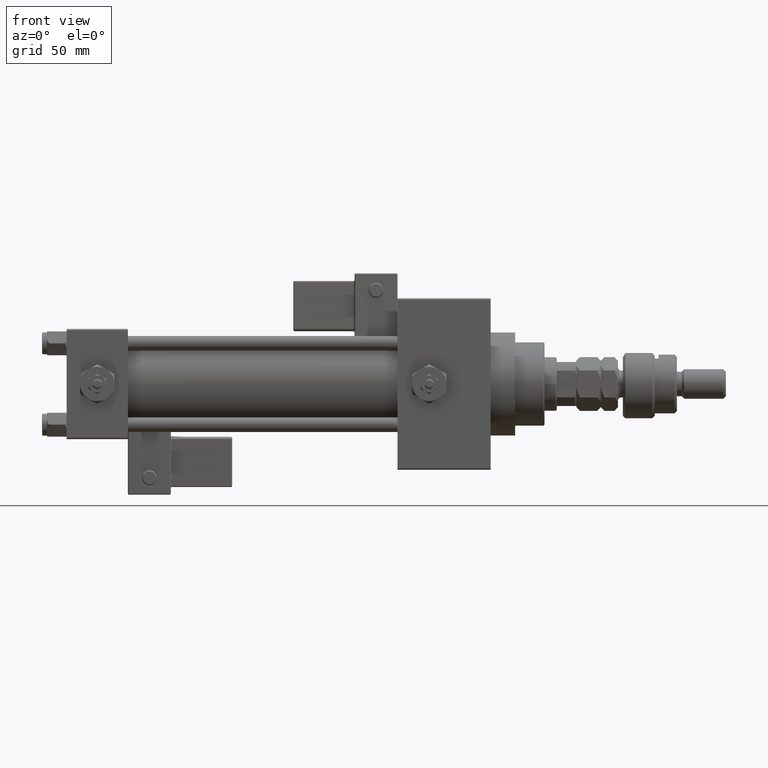
[diagram: clean part render]
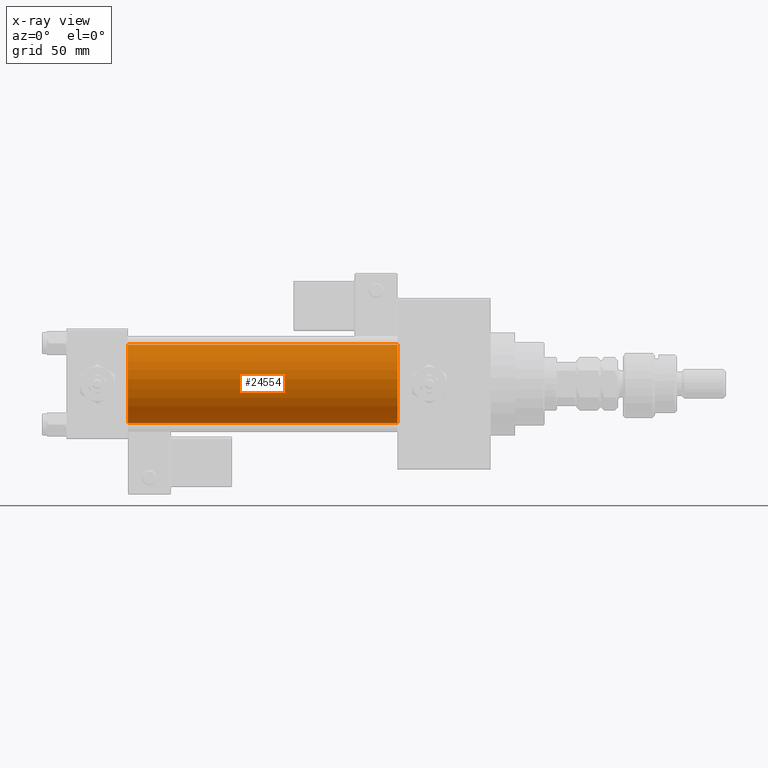
[diagram: x-ray — body ghosted, one internal face saturated and labeled with its STEP entity id]
A machine part, front view, then the same camera in x-ray: the body is ghosted and one INTERNAL B-rep face — a face not visible from any outside direction — is saturated and labeled: STEP entity #24554.
In plain terms, the highlighted cylindrical surface (partial cylindrical patch) has radius 16 mm, axis along (-1, -0, -0).
Its self-contained STEP definition (entity closure, byte-faithful):
#1438 = DIRECTION ( 'NONE',  ( 0.000000000000000000, 0.000000000000000000, -1.000000000000000000 ) ) ;
#3236 = AXIS2_PLACEMENT_3D ( 'NONE', #44527, #6954, #39604 ) ;
#6542 = CARTESIAN_POINT ( 'NONE',  ( 135.0000000000000000, -6.426503353294456087E-16, -16.00000000000000000 ) ) ;
#6954 = DIRECTION ( 'NONE',  ( 1.000000000000000000, 0.000000000000000000, 0.000000000000000000 ) ) ;
#7039 = CARTESIAN_POINT ( 'NONE',  ( 135.0000000000000000, -2.602085213965210642E-15, 16.00000000000000000 ) ) ;
#7576 = DIRECTION ( 'NONE',  ( -1.000000000000000000, -0.000000000000000000, -0.000000000000000000 ) ) ;
#8197 = CYLINDRICAL_SURFACE ( 'NONE', #8946, 16.00000000000000000 ) ;
#8374 = ORIENTED_EDGE ( 'NONE', *, *, #10471, .F. ) ;
#8771 = CARTESIAN_POINT ( 'NONE',  ( 135.0000000000000000, -2.602085213965210642E-15, 16.00000000000000000 ) ) ;
#8778 = ORIENTED_EDGE ( 'NONE', *, *, #32181, .F. ) ;
#8946 = AXIS2_PLACEMENT_3D ( 'NONE', #50399, #24947, #17269 ) ;
#10281 = ORIENTED_EDGE ( 'NONE', *, *, #39261, .T. ) ;
#10471 = EDGE_CURVE ( 'NONE', #19815, #30700, #13767, .T. ) ;
#13767 = CIRCLE ( 'NONE', #3236, 16.00000000000000000 ) ;
#17005 = CARTESIAN_POINT ( 'NONE',  ( 135.0000000000000000, -6.426503353294456087E-16, -16.00000000000000000 ) ) ;
#17269 = DIRECTION ( 'NONE',  ( 0.000000000000000000, 0.000000000000000000, 1.000000000000000000 ) ) ;
#19815 = VERTEX_POINT ( 'NONE', #32268 ) ;
#20583 = EDGE_LOOP ( 'NONE', ( #52044, #10281, #8374, #8778 ) ) ;
#24325 = LINE ( 'NONE', #7039, #34709 ) ;
#24554 = ADVANCED_FACE ( 'NONE', ( #45761 ), #8197, .F. ) ;
#24947 = DIRECTION ( 'NONE',  ( -1.000000000000000000, -0.000000000000000000, -0.000000000000000000 ) ) ;
#25434 = VERTEX_POINT ( 'NONE', #17005 ) ;
#26352 = VERTEX_POINT ( 'NONE', #8771 ) ;
#27220 = CARTESIAN_POINT ( 'NONE',  ( 25.00000000000000000, -6.426503353294456087E-16, -16.00000000000000000 ) ) ;
#29585 = AXIS2_PLACEMENT_3D ( 'NONE', #38508, #34403, #1438 ) ;
#30700 = VERTEX_POINT ( 'NONE', #27220 ) ;
#32181 = EDGE_CURVE ( 'NONE', #26352, #19815, #24325, .T. ) ;
#32268 = CARTESIAN_POINT ( 'NONE',  ( 25.00000000000000000, -2.602085213965210642E-15, 16.00000000000000000 ) ) ;
#34403 = DIRECTION ( 'NONE',  ( 1.000000000000000000, 0.000000000000000000, 0.000000000000000000 ) ) ;
#34709 = VECTOR ( 'NONE', #7576, 1000.000000000000000 ) ;
#38508 = CARTESIAN_POINT ( 'NONE',  ( 135.0000000000000000, -2.602085213965210642E-15, 0.000000000000000000 ) ) ;
#39261 = EDGE_CURVE ( 'NONE', #25434, #30700, #43868, .T. ) ;
#39604 = DIRECTION ( 'NONE',  ( 0.000000000000000000, 0.000000000000000000, -1.000000000000000000 ) ) ;
#40088 = VECTOR ( 'NONE', #50784, 1000.000000000000000 ) ;
#43868 = LINE ( 'NONE', #6542, #40088 ) ;
#44527 = CARTESIAN_POINT ( 'NONE',  ( 25.00000000000000000, -2.602085213965210642E-15, 0.000000000000000000 ) ) ;
#45761 = FACE_OUTER_BOUND ( 'NONE', #20583, .T. ) ;
#50399 = CARTESIAN_POINT ( 'NONE',  ( 135.0000000000000000, -2.602085213965210642E-15, 0.000000000000000000 ) ) ;
#50784 = DIRECTION ( 'NONE',  ( -1.000000000000000000, -0.000000000000000000, -0.000000000000000000 ) ) ;
#50936 = EDGE_CURVE ( 'NONE', #26352, #25434, #53181, .T. ) ;
#52044 = ORIENTED_EDGE ( 'NONE', *, *, #50936, .T. ) ;
#53181 = CIRCLE ( 'NONE', #29585, 16.00000000000000000 ) ;